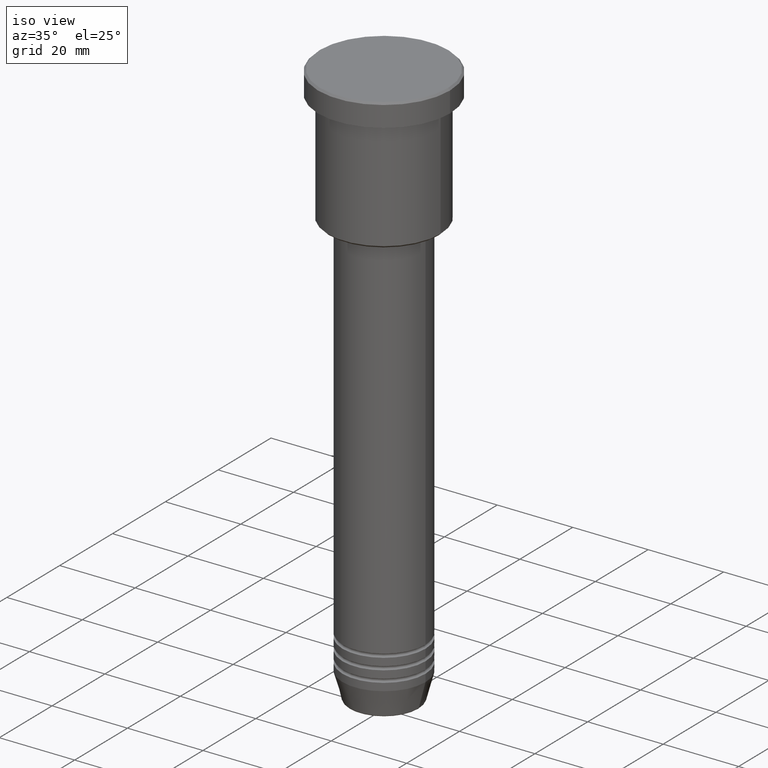
[diagram: clean part render]
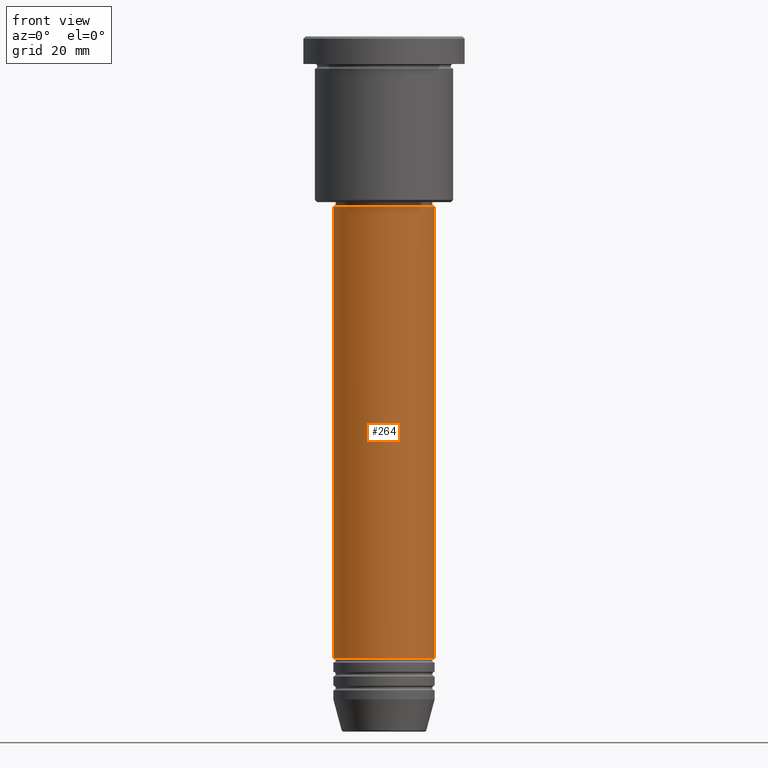
[diagram: tour spotlight — one face highlighted and labeled with its STEP entity id]
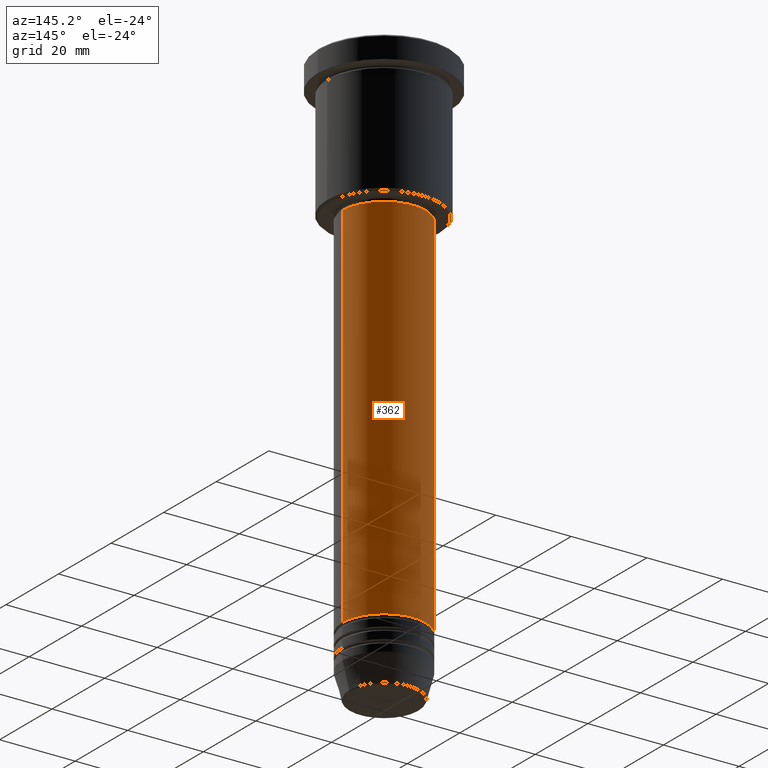
[diagram: tour spotlight — one face highlighted and labeled with its STEP entity id]
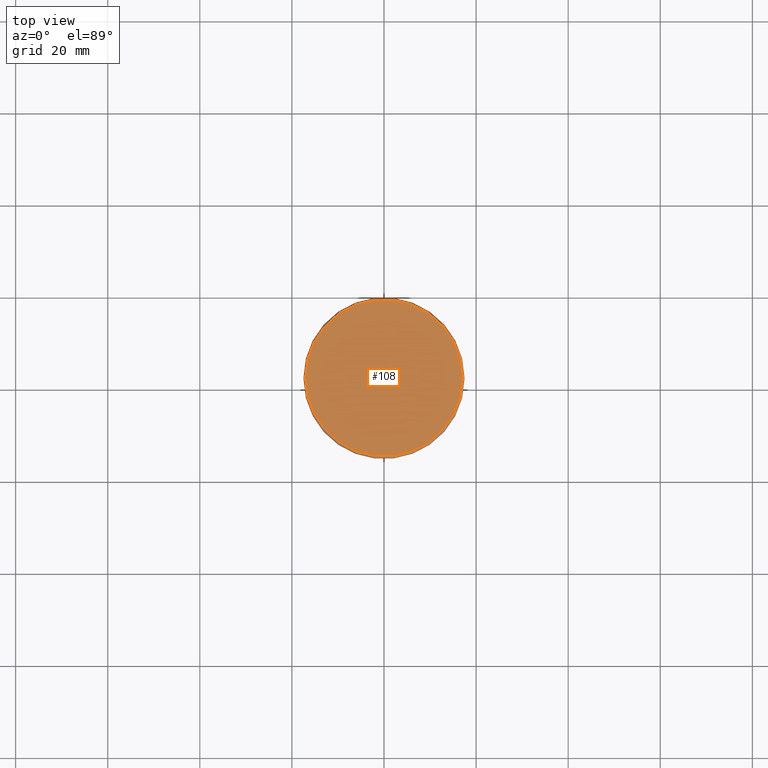
[diagram: tour spotlight — one face highlighted and labeled with its STEP entity id]
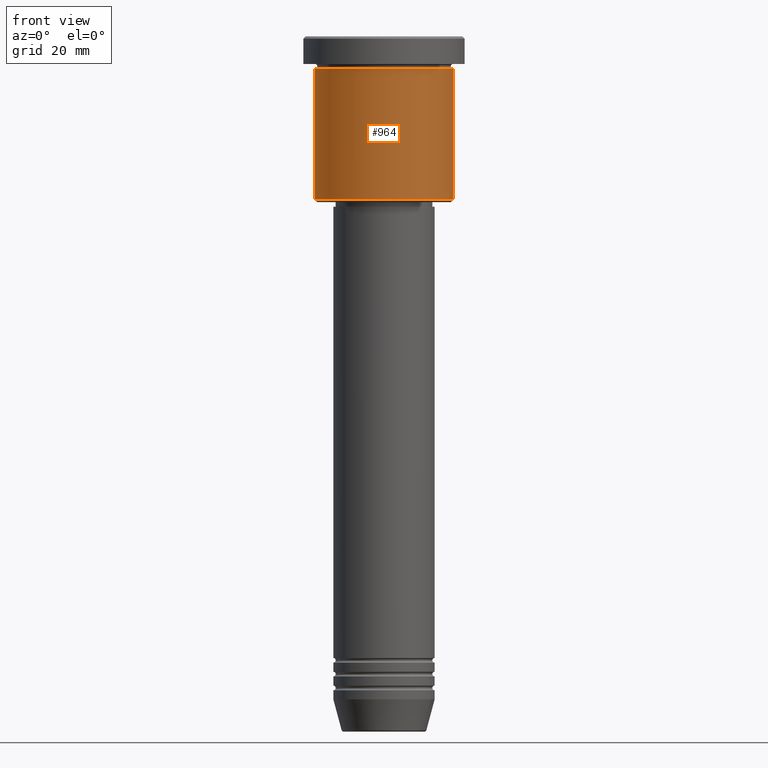
[diagram: tour spotlight — one face highlighted and labeled with its STEP entity id]
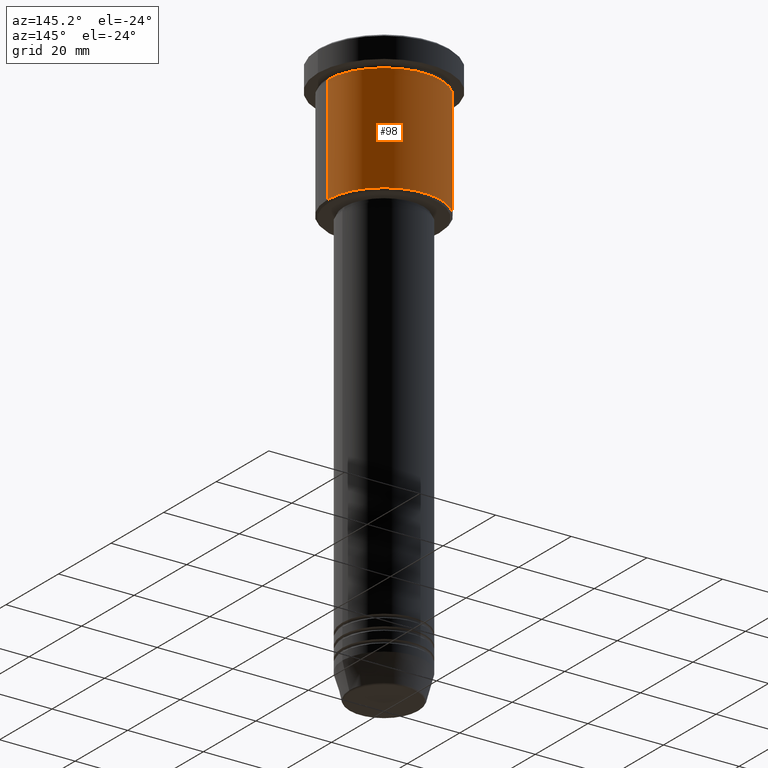
[diagram: tour spotlight — one face highlighted and labeled with its STEP entity id]
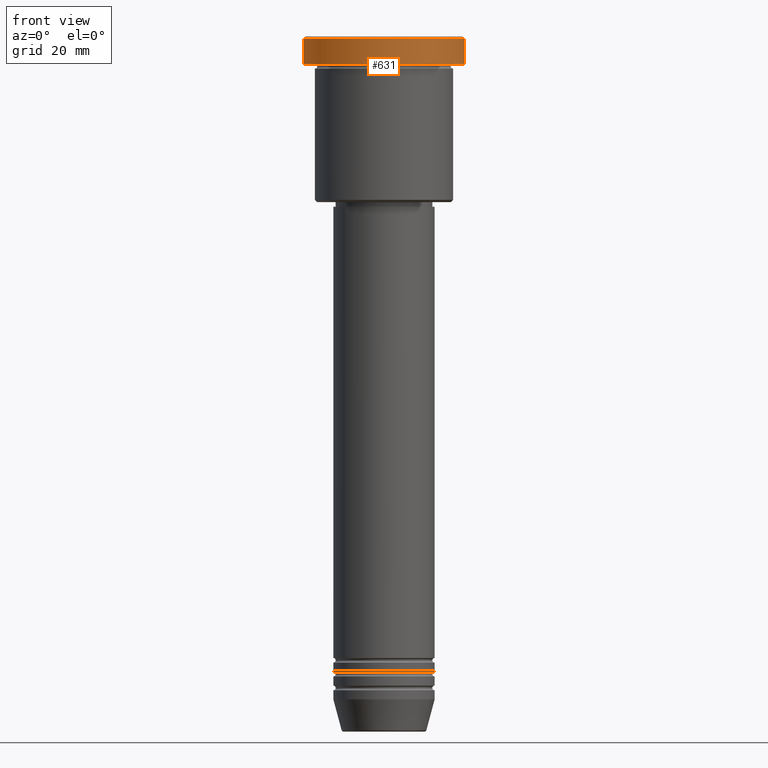
[diagram: tour spotlight — one face highlighted and labeled with its STEP entity id]
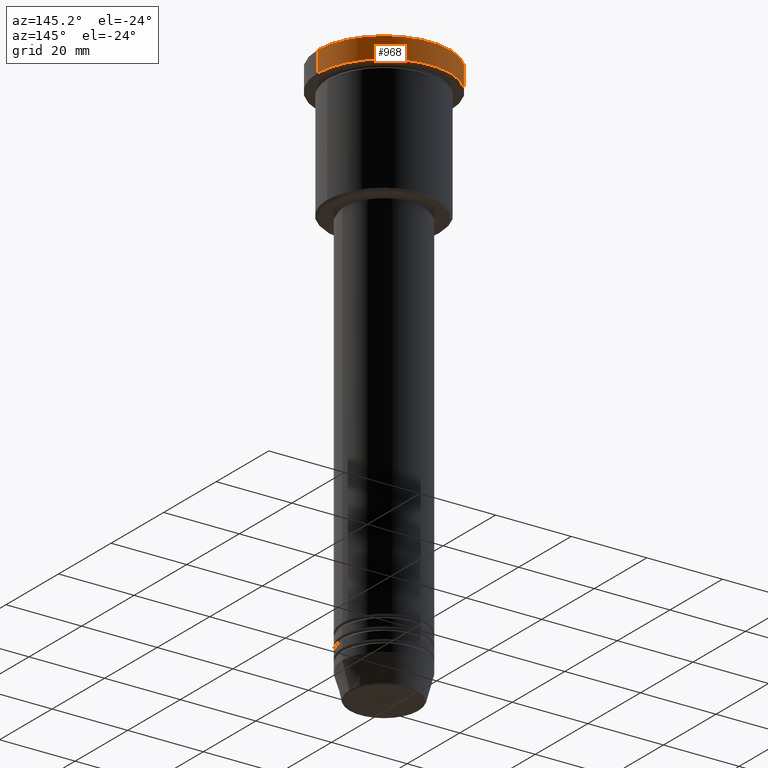
[diagram: tour spotlight — one face highlighted and labeled with its STEP entity id]
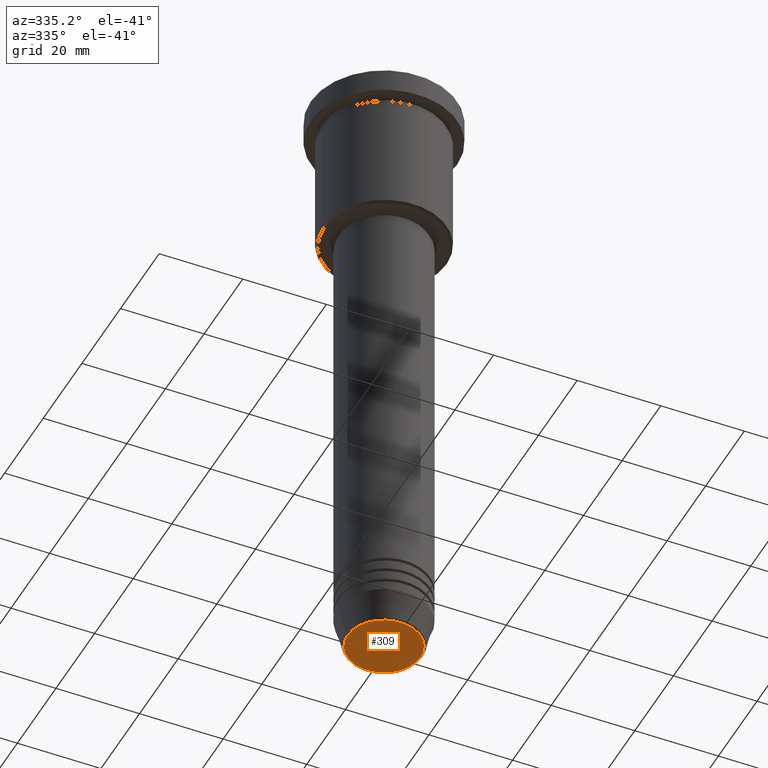
[diagram: tour spotlight — one face highlighted and labeled with its STEP entity id]
A machine part: a face-by-face anatomy tour. The part has 43 B-rep faces; the first image is the clean iso view, then the 8 largest visible faces are spotlighted one at a time (largest first), each with its STEP entity span.

Face 1 — front view, entity #264. In plain terms, the highlighted cylindrical surface (partial cylindrical patch) has radius 11 mm, axis along (-0, -0, 1).
Definition (entity closure, byte-faithful):
#38 = DIRECTION ( 'NONE',  ( -0.000000000000000000, -0.000000000000000000, 1.000000000000000000 ) ) ;
#66 = ORIENTED_EDGE ( 'NONE', *, *, #966, .F. ) ;
#78 = DIRECTION ( 'NONE',  ( -0.000000000000000000, -0.000000000000000000, 1.000000000000000000 ) ) ;
#93 = CIRCLE ( 'NONE', #998, 11.00000000000000000 ) ;
#103 = LINE ( 'NONE', #828, #578 ) ;
#120 = DIRECTION ( 'NONE',  ( -0.000000000000000000, -0.000000000000000000, 1.000000000000000000 ) ) ;
#172 = LINE ( 'NONE', #281, #674 ) ;
#193 = CARTESIAN_POINT ( 'NONE',  ( -11.00000000000000000, 1.347111479062088405E-15, -134.9999999999999716 ) ) ;
#249 = EDGE_LOOP ( 'NONE', ( #66, #871, #413, #1098 ) ) ;
#264 = ADVANCED_FACE ( 'NONE', ( #543 ), #1176, .T. ) ;
#281 = CARTESIAN_POINT ( 'NONE',  ( 11.00000000000000000, 0.000000000000000000, 0.000000000000000000 ) ) ;
#295 = CARTESIAN_POINT ( 'NONE',  ( 0.000000000000000000, 0.000000000000000000, -37.00000000000001421 ) ) ;
#330 = AXIS2_PLACEMENT_3D ( 'NONE', #295, #120, #354 ) ;
#353 = DIRECTION ( 'NONE',  ( 1.000000000000000000, 0.000000000000000000, 0.000000000000000000 ) ) ;
#354 = DIRECTION ( 'NONE',  ( 1.000000000000000000, 0.000000000000000000, 0.000000000000000000 ) ) ;
#380 = EDGE_CURVE ( 'NONE', #651, #1113, #1014, .T. ) ;
#413 = ORIENTED_EDGE ( 'NONE', *, *, #999, .T. ) ;
#423 = VERTEX_POINT ( 'NONE', #193 ) ;
#430 = AXIS2_PLACEMENT_3D ( 'NONE', #906, #78, #353 ) ;
#543 = FACE_OUTER_BOUND ( 'NONE', #249, .T. ) ;
#578 = VECTOR ( 'NONE', #834, 1000.000000000000000 ) ;
#637 = DIRECTION ( 'NONE',  ( -0.000000000000000000, -0.000000000000000000, 1.000000000000000000 ) ) ;
#651 = VERTEX_POINT ( 'NONE', #1042 ) ;
#674 = VECTOR ( 'NONE', #637, 1000.000000000000000 ) ;
#688 = CARTESIAN_POINT ( 'NONE',  ( 0.000000000000000000, 0.000000000000000000, -134.9999999999999716 ) ) ;
#738 = VERTEX_POINT ( 'NONE', #866 ) ;
#828 = CARTESIAN_POINT ( 'NONE',  ( -11.00000000000000000, 1.347111479062088405E-15, 0.000000000000000000 ) ) ;
#834 = DIRECTION ( 'NONE',  ( -0.000000000000000000, -0.000000000000000000, 1.000000000000000000 ) ) ;
#866 = CARTESIAN_POINT ( 'NONE',  ( 11.00000000000000000, 0.000000000000000000, -134.9999999999999716 ) ) ;
#871 = ORIENTED_EDGE ( 'NONE', *, *, #1173, .T. ) ;
#906 = CARTESIAN_POINT ( 'NONE',  ( 0.000000000000000000, 0.000000000000000000, 0.000000000000000000 ) ) ;
#942 = CARTESIAN_POINT ( 'NONE',  ( 11.00000000000000000, 0.000000000000000000, -37.00000000000001421 ) ) ;
#966 = EDGE_CURVE ( 'NONE', #423, #651, #103, .T. ) ;
#998 = AXIS2_PLACEMENT_3D ( 'NONE', #688, #38, #1074 ) ;
#999 = EDGE_CURVE ( 'NONE', #738, #1113, #172, .T. ) ;
#1014 = CIRCLE ( 'NONE', #330, 11.00000000000000000 ) ;
#1042 = CARTESIAN_POINT ( 'NONE',  ( -11.00000000000000000, 1.347111479062088405E-15, -37.00000000000001421 ) ) ;
#1074 = DIRECTION ( 'NONE',  ( 1.000000000000000000, 0.000000000000000000, 0.000000000000000000 ) ) ;
#1098 = ORIENTED_EDGE ( 'NONE', *, *, #380, .F. ) ;
#1113 = VERTEX_POINT ( 'NONE', #942 ) ;
#1173 = EDGE_CURVE ( 'NONE', #423, #738, #93, .T. ) ;
#1176 = CYLINDRICAL_SURFACE ( 'NONE', #430, 11.00000000000000000 ) ;

Face 2 — auxiliary view, entity #362. In plain terms, the highlighted cylindrical surface (partial cylindrical patch) has radius 11 mm, axis along (-0, -0, 1).
Definition (entity closure, byte-faithful):
#44 = CIRCLE ( 'NONE', #126, 11.00000000000000000 ) ;
#81 = ORIENTED_EDGE ( 'NONE', *, *, #966, .T. ) ;
#95 = DIRECTION ( 'NONE',  ( 1.000000000000000000, 0.000000000000000000, 0.000000000000000000 ) ) ;
#103 = LINE ( 'NONE', #828, #578 ) ;
#110 = DIRECTION ( 'NONE',  ( 1.000000000000000000, 0.000000000000000000, 0.000000000000000000 ) ) ;
#126 = AXIS2_PLACEMENT_3D ( 'NONE', #776, #577, #954 ) ;
#172 = LINE ( 'NONE', #281, #674 ) ;
#193 = CARTESIAN_POINT ( 'NONE',  ( -11.00000000000000000, 1.347111479062088405E-15, -134.9999999999999716 ) ) ;
#281 = CARTESIAN_POINT ( 'NONE',  ( 11.00000000000000000, 0.000000000000000000, 0.000000000000000000 ) ) ;
#292 = DIRECTION ( 'NONE',  ( -0.000000000000000000, -0.000000000000000000, 1.000000000000000000 ) ) ;
#362 = ADVANCED_FACE ( 'NONE', ( #600 ), #761, .T. ) ;
#412 = EDGE_CURVE ( 'NONE', #1113, #651, #938, .T. ) ;
#423 = VERTEX_POINT ( 'NONE', #193 ) ;
#441 = ORIENTED_EDGE ( 'NONE', *, *, #1062, .T. ) ;
#457 = CARTESIAN_POINT ( 'NONE',  ( 0.000000000000000000, 0.000000000000000000, -37.00000000000001421 ) ) ;
#577 = DIRECTION ( 'NONE',  ( -0.000000000000000000, -0.000000000000000000, 1.000000000000000000 ) ) ;
#578 = VECTOR ( 'NONE', #834, 1000.000000000000000 ) ;
#600 = FACE_OUTER_BOUND ( 'NONE', #669, .T. ) ;
#637 = DIRECTION ( 'NONE',  ( -0.000000000000000000, -0.000000000000000000, 1.000000000000000000 ) ) ;
#643 = DIRECTION ( 'NONE',  ( -0.000000000000000000, -0.000000000000000000, 1.000000000000000000 ) ) ;
#651 = VERTEX_POINT ( 'NONE', #1042 ) ;
#669 = EDGE_LOOP ( 'NONE', ( #441, #81, #788, #1059 ) ) ;
#672 = AXIS2_PLACEMENT_3D ( 'NONE', #1121, #292, #110 ) ;
#674 = VECTOR ( 'NONE', #637, 1000.000000000000000 ) ;
#738 = VERTEX_POINT ( 'NONE', #866 ) ;
#761 = CYLINDRICAL_SURFACE ( 'NONE', #672, 11.00000000000000000 ) ;
#770 = AXIS2_PLACEMENT_3D ( 'NONE', #457, #643, #95 ) ;
#776 = CARTESIAN_POINT ( 'NONE',  ( 0.000000000000000000, 0.000000000000000000, -134.9999999999999716 ) ) ;
#788 = ORIENTED_EDGE ( 'NONE', *, *, #412, .F. ) ;
#828 = CARTESIAN_POINT ( 'NONE',  ( -11.00000000000000000, 1.347111479062088405E-15, 0.000000000000000000 ) ) ;
#834 = DIRECTION ( 'NONE',  ( -0.000000000000000000, -0.000000000000000000, 1.000000000000000000 ) ) ;
#866 = CARTESIAN_POINT ( 'NONE',  ( 11.00000000000000000, 0.000000000000000000, -134.9999999999999716 ) ) ;
#938 = CIRCLE ( 'NONE', #770, 11.00000000000000000 ) ;
#942 = CARTESIAN_POINT ( 'NONE',  ( 11.00000000000000000, 0.000000000000000000, -37.00000000000001421 ) ) ;
#954 = DIRECTION ( 'NONE',  ( 1.000000000000000000, 0.000000000000000000, 0.000000000000000000 ) ) ;
#966 = EDGE_CURVE ( 'NONE', #423, #651, #103, .T. ) ;
#999 = EDGE_CURVE ( 'NONE', #738, #1113, #172, .T. ) ;
#1042 = CARTESIAN_POINT ( 'NONE',  ( -11.00000000000000000, 1.347111479062088405E-15, -37.00000000000001421 ) ) ;
#1059 = ORIENTED_EDGE ( 'NONE', *, *, #999, .F. ) ;
#1062 = EDGE_CURVE ( 'NONE', #738, #423, #44, .T. ) ;
#1113 = VERTEX_POINT ( 'NONE', #942 ) ;
#1121 = CARTESIAN_POINT ( 'NONE',  ( 0.000000000000000000, 0.000000000000000000, 0.000000000000000000 ) ) ;

Face 3 — top view, entity #108. In plain terms, the highlighted planar face has unit normal (0, -0, 1).
Definition (entity closure, byte-faithful):
#1 = AXIS2_PLACEMENT_3D ( 'NONE', #884, #154, #1175 ) ;
#11 = CARTESIAN_POINT ( 'NONE',  ( 0.000000000000000000, 0.000000000000000000, 0.000000000000000000 ) ) ;
#108 = ADVANCED_FACE ( 'NONE', ( #852 ), #946, .T. ) ;
#154 = DIRECTION ( 'NONE',  ( -0.000000000000000000, -0.000000000000000000, 1.000000000000000000 ) ) ;
#176 = VERTEX_POINT ( 'NONE', #984 ) ;
#230 = ORIENTED_EDGE ( 'NONE', *, *, #922, .T. ) ;
#289 = DIRECTION ( 'NONE',  ( 1.000000000000000000, 0.000000000000000000, 0.000000000000000000 ) ) ;
#298 = DIRECTION ( 'NONE',  ( -0.000000000000000000, -0.000000000000000000, 1.000000000000000000 ) ) ;
#371 = DIRECTION ( 'NONE',  ( 1.000000000000000000, 0.000000000000000000, 0.000000000000000000 ) ) ;
#531 = VERTEX_POINT ( 'NONE', #930 ) ;
#692 = CIRCLE ( 'NONE', #1146, 17.00000000000004263 ) ;
#852 = FACE_OUTER_BOUND ( 'NONE', #885, .T. ) ;
#853 = CARTESIAN_POINT ( 'NONE',  ( 0.000000000000000000, 0.000000000000000000, 0.000000000000000000 ) ) ;
#884 = CARTESIAN_POINT ( 'NONE',  ( 0.000000000000000000, 0.000000000000000000, 0.000000000000000000 ) ) ;
#885 = EDGE_LOOP ( 'NONE', ( #230, #974 ) ) ;
#922 = EDGE_CURVE ( 'NONE', #531, #176, #1144, .T. ) ;
#930 = CARTESIAN_POINT ( 'NONE',  ( -17.00000000000004263, 0.000000000000000000, 0.000000000000000000 ) ) ;
#946 = PLANE ( 'NONE',  #1047 ) ;
#974 = ORIENTED_EDGE ( 'NONE', *, *, #1072, .T. ) ;
#984 = CARTESIAN_POINT ( 'NONE',  ( 17.00000000000004263, 2.112515728529187222E-15, 0.000000000000000000 ) ) ;
#1047 = AXIS2_PLACEMENT_3D ( 'NONE', #11, #1111, #371 ) ;
#1072 = EDGE_CURVE ( 'NONE', #176, #531, #692, .T. ) ;
#1111 = DIRECTION ( 'NONE',  ( 0.000000000000000000, -0.000000000000000000, 1.000000000000000000 ) ) ;
#1144 = CIRCLE ( 'NONE', #1, 17.00000000000004263 ) ;
#1146 = AXIS2_PLACEMENT_3D ( 'NONE', #853, #298, #289 ) ;
#1175 = DIRECTION ( 'NONE',  ( 1.000000000000000000, 0.000000000000000000, 0.000000000000000000 ) ) ;

Face 4 — front view, entity #964. In plain terms, the highlighted cylindrical surface (partial cylindrical patch) has radius 15 mm, axis along (-0, -0, 1).
Definition (entity closure, byte-faithful):
#4 = ORIENTED_EDGE ( 'NONE', *, *, #537, .T. ) ;
#8 = ORIENTED_EDGE ( 'NONE', *, *, #680, .F. ) ;
#24 = AXIS2_PLACEMENT_3D ( 'NONE', #977, #722, #1080 ) ;
#43 = VECTOR ( 'NONE', #756, 1000.000000000000000 ) ;
#86 = ORIENTED_EDGE ( 'NONE', *, *, #426, .T. ) ;
#92 = CIRCLE ( 'NONE', #24, 15.00000000000000000 ) ;
#100 = DIRECTION ( 'NONE',  ( 1.000000000000000000, 0.000000000000000000, 0.000000000000000000 ) ) ;
#265 = EDGE_LOOP ( 'NONE', ( #8, #4, #86, #1174 ) ) ;
#285 = FACE_OUTER_BOUND ( 'NONE', #265, .T. ) ;
#293 = VERTEX_POINT ( 'NONE', #300 ) ;
#300 = CARTESIAN_POINT ( 'NONE',  ( 15.00000000000000000, 0.000000000000000000, -35.49999999999997868 ) ) ;
#369 = CYLINDRICAL_SURFACE ( 'NONE', #863, 15.00000000000000000 ) ;
#388 = LINE ( 'NONE', #830, #43 ) ;
#404 = DIRECTION ( 'NONE',  ( -0.000000000000000000, -0.000000000000000000, 1.000000000000000000 ) ) ;
#410 = CARTESIAN_POINT ( 'NONE',  ( -15.00000000000000000, 1.836970198721029589E-15, 0.000000000000000000 ) ) ;
#426 = EDGE_CURVE ( 'NONE', #293, #439, #388, .T. ) ;
#439 = VERTEX_POINT ( 'NONE', #1026 ) ;
#470 = DIRECTION ( 'NONE',  ( -1.000000000000000000, 0.000000000000000000, 0.000000000000000000 ) ) ;
#537 = EDGE_CURVE ( 'NONE', #913, #293, #730, .T. ) ;
#542 = CARTESIAN_POINT ( 'NONE',  ( -15.00000000000000000, 1.836970198721029589E-15, -35.49999999999997868 ) ) ;
#574 = CARTESIAN_POINT ( 'NONE',  ( 0.000000000000000000, 0.000000000000000000, -35.49999999999997868 ) ) ;
#621 = VERTEX_POINT ( 'NONE', #1039 ) ;
#663 = DIRECTION ( 'NONE',  ( -0.000000000000000000, -0.000000000000000000, 1.000000000000000000 ) ) ;
#680 = EDGE_CURVE ( 'NONE', #913, #621, #777, .T. ) ;
#722 = DIRECTION ( 'NONE',  ( -0.000000000000000000, -0.000000000000000000, 1.000000000000000000 ) ) ;
#730 = CIRCLE ( 'NONE', #1157, 15.00000000000000000 ) ;
#756 = DIRECTION ( 'NONE',  ( -0.000000000000000000, -0.000000000000000000, 1.000000000000000000 ) ) ;
#777 = LINE ( 'NONE', #410, #1035 ) ;
#830 = CARTESIAN_POINT ( 'NONE',  ( 15.00000000000000000, 0.000000000000000000, 0.000000000000000000 ) ) ;
#863 = AXIS2_PLACEMENT_3D ( 'NONE', #1025, #1013, #100 ) ;
#869 = EDGE_CURVE ( 'NONE', #621, #439, #92, .T. ) ;
#913 = VERTEX_POINT ( 'NONE', #542 ) ;
#964 = ADVANCED_FACE ( 'NONE', ( #285 ), #369, .T. ) ;
#977 = CARTESIAN_POINT ( 'NONE',  ( 0.000000000000000000, 0.000000000000000000, -6.999999999999995559 ) ) ;
#1013 = DIRECTION ( 'NONE',  ( -0.000000000000000000, -0.000000000000000000, 1.000000000000000000 ) ) ;
#1025 = CARTESIAN_POINT ( 'NONE',  ( 0.000000000000000000, 0.000000000000000000, 0.000000000000000000 ) ) ;
#1026 = CARTESIAN_POINT ( 'NONE',  ( 15.00000000000000000, 0.000000000000000000, -6.999999999999995559 ) ) ;
#1035 = VECTOR ( 'NONE', #404, 1000.000000000000000 ) ;
#1039 = CARTESIAN_POINT ( 'NONE',  ( -15.00000000000000000, 1.836970198721029589E-15, -6.999999999999995559 ) ) ;
#1080 = DIRECTION ( 'NONE',  ( 1.000000000000000000, 0.000000000000000000, 0.000000000000000000 ) ) ;
#1157 = AXIS2_PLACEMENT_3D ( 'NONE', #574, #663, #470 ) ;
#1174 = ORIENTED_EDGE ( 'NONE', *, *, #869, .F. ) ;

Face 5 — auxiliary view, entity #98. In plain terms, the highlighted cylindrical surface (partial cylindrical patch) has radius 15 mm, axis along (-0, -0, 1).
Definition (entity closure, byte-faithful):
#43 = VECTOR ( 'NONE', #756, 1000.000000000000000 ) ;
#98 = ADVANCED_FACE ( 'NONE', ( #475 ), #294, .T. ) ;
#157 = AXIS2_PLACEMENT_3D ( 'NONE', #832, #573, #488 ) ;
#213 = DIRECTION ( 'NONE',  ( 1.000000000000000000, 0.000000000000000000, 0.000000000000000000 ) ) ;
#221 = DIRECTION ( 'NONE',  ( -1.000000000000000000, 0.000000000000000000, 0.000000000000000000 ) ) ;
#240 = EDGE_LOOP ( 'NONE', ( #933, #678, #325, #321 ) ) ;
#293 = VERTEX_POINT ( 'NONE', #300 ) ;
#294 = CYLINDRICAL_SURFACE ( 'NONE', #157, 15.00000000000000000 ) ;
#300 = CARTESIAN_POINT ( 'NONE',  ( 15.00000000000000000, 0.000000000000000000, -35.49999999999997868 ) ) ;
#321 = ORIENTED_EDGE ( 'NONE', *, *, #426, .F. ) ;
#325 = ORIENTED_EDGE ( 'NONE', *, *, #696, .F. ) ;
#388 = LINE ( 'NONE', #830, #43 ) ;
#404 = DIRECTION ( 'NONE',  ( -0.000000000000000000, -0.000000000000000000, 1.000000000000000000 ) ) ;
#408 = DIRECTION ( 'NONE',  ( -0.000000000000000000, -0.000000000000000000, 1.000000000000000000 ) ) ;
#410 = CARTESIAN_POINT ( 'NONE',  ( -15.00000000000000000, 1.836970198721029589E-15, 0.000000000000000000 ) ) ;
#426 = EDGE_CURVE ( 'NONE', #293, #439, #388, .T. ) ;
#439 = VERTEX_POINT ( 'NONE', #1026 ) ;
#475 = FACE_OUTER_BOUND ( 'NONE', #240, .T. ) ;
#488 = DIRECTION ( 'NONE',  ( 1.000000000000000000, 0.000000000000000000, 0.000000000000000000 ) ) ;
#539 = CIRCLE ( 'NONE', #612, 15.00000000000000000 ) ;
#542 = CARTESIAN_POINT ( 'NONE',  ( -15.00000000000000000, 1.836970198721029589E-15, -35.49999999999997868 ) ) ;
#573 = DIRECTION ( 'NONE',  ( -0.000000000000000000, -0.000000000000000000, 1.000000000000000000 ) ) ;
#612 = AXIS2_PLACEMENT_3D ( 'NONE', #691, #408, #221 ) ;
#621 = VERTEX_POINT ( 'NONE', #1039 ) ;
#678 = ORIENTED_EDGE ( 'NONE', *, *, #680, .T. ) ;
#679 = DIRECTION ( 'NONE',  ( -0.000000000000000000, -0.000000000000000000, 1.000000000000000000 ) ) ;
#680 = EDGE_CURVE ( 'NONE', #913, #621, #777, .T. ) ;
#691 = CARTESIAN_POINT ( 'NONE',  ( 0.000000000000000000, 0.000000000000000000, -35.49999999999997868 ) ) ;
#696 = EDGE_CURVE ( 'NONE', #439, #621, #1181, .T. ) ;
#756 = DIRECTION ( 'NONE',  ( -0.000000000000000000, -0.000000000000000000, 1.000000000000000000 ) ) ;
#775 = EDGE_CURVE ( 'NONE', #293, #913, #539, .T. ) ;
#777 = LINE ( 'NONE', #410, #1035 ) ;
#830 = CARTESIAN_POINT ( 'NONE',  ( 15.00000000000000000, 0.000000000000000000, 0.000000000000000000 ) ) ;
#832 = CARTESIAN_POINT ( 'NONE',  ( 0.000000000000000000, 0.000000000000000000, 0.000000000000000000 ) ) ;
#913 = VERTEX_POINT ( 'NONE', #542 ) ;
#933 = ORIENTED_EDGE ( 'NONE', *, *, #775, .T. ) ;
#1026 = CARTESIAN_POINT ( 'NONE',  ( 15.00000000000000000, 0.000000000000000000, -6.999999999999995559 ) ) ;
#1035 = VECTOR ( 'NONE', #404, 1000.000000000000000 ) ;
#1038 = CARTESIAN_POINT ( 'NONE',  ( 0.000000000000000000, 0.000000000000000000, -6.999999999999995559 ) ) ;
#1039 = CARTESIAN_POINT ( 'NONE',  ( -15.00000000000000000, 1.836970198721029589E-15, -6.999999999999995559 ) ) ;
#1065 = AXIS2_PLACEMENT_3D ( 'NONE', #1038, #679, #213 ) ;
#1181 = CIRCLE ( 'NONE', #1065, 15.00000000000000000 ) ;

Face 6 — front view, entity #631. In plain terms, the highlighted cylindrical surface (partial cylindrical patch) has radius 17.5 mm, axis along (-0, -0, 1).
Definition (entity closure, byte-faithful):
#36 = EDGE_CURVE ( 'NONE', #907, #61, #1000, .T. ) ;
#51 = AXIS2_PLACEMENT_3D ( 'NONE', #164, #65, #735 ) ;
#57 = VERTEX_POINT ( 'NONE', #399 ) ;
#61 = VERTEX_POINT ( 'NONE', #763 ) ;
#65 = DIRECTION ( 'NONE',  ( -0.000000000000000000, -0.000000000000000000, 1.000000000000000000 ) ) ;
#164 = CARTESIAN_POINT ( 'NONE',  ( 0.000000000000000000, 0.000000000000000000, -5.999999999999995559 ) ) ;
#166 = DIRECTION ( 'NONE',  ( -0.000000000000000000, -0.000000000000000000, 1.000000000000000000 ) ) ;
#169 = CARTESIAN_POINT ( 'NONE',  ( 0.000000000000000000, 0.000000000000000000, 0.000000000000000000 ) ) ;
#170 = VERTEX_POINT ( 'NONE', #978 ) ;
#204 = CARTESIAN_POINT ( 'NONE',  ( 17.50000000000000000, 0.000000000000000000, 0.000000000000000000 ) ) ;
#205 = VECTOR ( 'NONE', #166, 1000.000000000000000 ) ;
#231 = EDGE_CURVE ( 'NONE', #907, #57, #592, .T. ) ;
#237 = DIRECTION ( 'NONE',  ( 1.000000000000000000, 0.000000000000000000, 0.000000000000000000 ) ) ;
#333 = CYLINDRICAL_SURFACE ( 'NONE', #1033, 17.50000000000000000 ) ;
#390 = DIRECTION ( 'NONE',  ( -0.000000000000000000, -0.000000000000000000, 1.000000000000000000 ) ) ;
#399 = CARTESIAN_POINT ( 'NONE',  ( 17.50000000000000000, 0.000000000000000000, -5.999999999999995559 ) ) ;
#406 = VECTOR ( 'NONE', #390, 1000.000000000000000 ) ;
#447 = DIRECTION ( 'NONE',  ( -0.000000000000000000, -0.000000000000000000, 1.000000000000000000 ) ) ;
#464 = ORIENTED_EDGE ( 'NONE', *, *, #1131, .T. ) ;
#480 = EDGE_LOOP ( 'NONE', ( #989, #921, #464, #564 ) ) ;
#497 = EDGE_CURVE ( 'NONE', #170, #61, #611, .T. ) ;
#499 = DIRECTION ( 'NONE',  ( 1.000000000000000000, 0.000000000000000000, 0.000000000000000000 ) ) ;
#524 = FACE_OUTER_BOUND ( 'NONE', #480, .T. ) ;
#564 = ORIENTED_EDGE ( 'NONE', *, *, #497, .T. ) ;
#592 = CIRCLE ( 'NONE', #51, 17.50000000000000000 ) ;
#611 = CIRCLE ( 'NONE', #1048, 17.50000000000000000 ) ;
#631 = ADVANCED_FACE ( 'NONE', ( #524 ), #333, .T. ) ;
#702 = CARTESIAN_POINT ( 'NONE',  ( 0.000000000000000000, 0.000000000000000000, -0.4999999999999865663 ) ) ;
#735 = DIRECTION ( 'NONE',  ( 1.000000000000000000, 0.000000000000000000, 0.000000000000000000 ) ) ;
#763 = CARTESIAN_POINT ( 'NONE',  ( -17.50000000000000000, 2.143131898507868248E-15, -0.4999999999999865663 ) ) ;
#817 = CARTESIAN_POINT ( 'NONE',  ( -17.50000000000000000, 2.143131898507868248E-15, 0.000000000000000000 ) ) ;
#867 = LINE ( 'NONE', #204, #406 ) ;
#907 = VERTEX_POINT ( 'NONE', #1076 ) ;
#921 = ORIENTED_EDGE ( 'NONE', *, *, #231, .T. ) ;
#978 = CARTESIAN_POINT ( 'NONE',  ( 17.50000000000000000, 0.000000000000000000, -0.4999999999999865663 ) ) ;
#989 = ORIENTED_EDGE ( 'NONE', *, *, #36, .F. ) ;
#1000 = LINE ( 'NONE', #817, #205 ) ;
#1033 = AXIS2_PLACEMENT_3D ( 'NONE', #169, #447, #499 ) ;
#1048 = AXIS2_PLACEMENT_3D ( 'NONE', #702, #1064, #237 ) ;
#1064 = DIRECTION ( 'NONE',  ( 0.000000000000000000, 0.000000000000000000, -1.000000000000000000 ) ) ;
#1076 = CARTESIAN_POINT ( 'NONE',  ( -17.50000000000000000, 2.143131898507868248E-15, -5.999999999999995559 ) ) ;
#1131 = EDGE_CURVE ( 'NONE', #57, #170, #867, .T. ) ;

Face 7 — auxiliary view, entity #968. In plain terms, the highlighted cylindrical surface (partial cylindrical patch) has radius 17.5 mm, axis along (-0, -0, 1).
Definition (entity closure, byte-faithful):
#36 = EDGE_CURVE ( 'NONE', #907, #61, #1000, .T. ) ;
#57 = VERTEX_POINT ( 'NONE', #399 ) ;
#61 = VERTEX_POINT ( 'NONE', #763 ) ;
#70 = AXIS2_PLACEMENT_3D ( 'NONE', #727, #465, #198 ) ;
#165 = ORIENTED_EDGE ( 'NONE', *, *, #1131, .F. ) ;
#166 = DIRECTION ( 'NONE',  ( -0.000000000000000000, -0.000000000000000000, 1.000000000000000000 ) ) ;
#170 = VERTEX_POINT ( 'NONE', #978 ) ;
#198 = DIRECTION ( 'NONE',  ( 1.000000000000000000, 0.000000000000000000, 0.000000000000000000 ) ) ;
#204 = CARTESIAN_POINT ( 'NONE',  ( 17.50000000000000000, 0.000000000000000000, 0.000000000000000000 ) ) ;
#205 = VECTOR ( 'NONE', #166, 1000.000000000000000 ) ;
#267 = CARTESIAN_POINT ( 'NONE',  ( 0.000000000000000000, 0.000000000000000000, 0.000000000000000000 ) ) ;
#327 = CARTESIAN_POINT ( 'NONE',  ( 0.000000000000000000, 0.000000000000000000, -0.4999999999999865663 ) ) ;
#334 = AXIS2_PLACEMENT_3D ( 'NONE', #267, #479, #1115 ) ;
#359 = AXIS2_PLACEMENT_3D ( 'NONE', #327, #801, #619 ) ;
#390 = DIRECTION ( 'NONE',  ( -0.000000000000000000, -0.000000000000000000, 1.000000000000000000 ) ) ;
#399 = CARTESIAN_POINT ( 'NONE',  ( 17.50000000000000000, 0.000000000000000000, -5.999999999999995559 ) ) ;
#406 = VECTOR ( 'NONE', #390, 1000.000000000000000 ) ;
#465 = DIRECTION ( 'NONE',  ( -0.000000000000000000, -0.000000000000000000, 1.000000000000000000 ) ) ;
#471 = ORIENTED_EDGE ( 'NONE', *, *, #36, .T. ) ;
#479 = DIRECTION ( 'NONE',  ( -0.000000000000000000, -0.000000000000000000, 1.000000000000000000 ) ) ;
#485 = CIRCLE ( 'NONE', #70, 17.50000000000000000 ) ;
#536 = ORIENTED_EDGE ( 'NONE', *, *, #829, .T. ) ;
#571 = FACE_OUTER_BOUND ( 'NONE', #811, .T. ) ;
#619 = DIRECTION ( 'NONE',  ( 1.000000000000000000, 0.000000000000000000, 0.000000000000000000 ) ) ;
#727 = CARTESIAN_POINT ( 'NONE',  ( 0.000000000000000000, 0.000000000000000000, -5.999999999999995559 ) ) ;
#740 = CYLINDRICAL_SURFACE ( 'NONE', #334, 17.50000000000000000 ) ;
#763 = CARTESIAN_POINT ( 'NONE',  ( -17.50000000000000000, 2.143131898507868248E-15, -0.4999999999999865663 ) ) ;
#801 = DIRECTION ( 'NONE',  ( 0.000000000000000000, 0.000000000000000000, -1.000000000000000000 ) ) ;
#811 = EDGE_LOOP ( 'NONE', ( #1149, #471, #536, #165 ) ) ;
#817 = CARTESIAN_POINT ( 'NONE',  ( -17.50000000000000000, 2.143131898507868248E-15, 0.000000000000000000 ) ) ;
#829 = EDGE_CURVE ( 'NONE', #61, #170, #1110, .T. ) ;
#867 = LINE ( 'NONE', #204, #406 ) ;
#907 = VERTEX_POINT ( 'NONE', #1076 ) ;
#953 = EDGE_CURVE ( 'NONE', #57, #907, #485, .T. ) ;
#968 = ADVANCED_FACE ( 'NONE', ( #571 ), #740, .T. ) ;
#978 = CARTESIAN_POINT ( 'NONE',  ( 17.50000000000000000, 0.000000000000000000, -0.4999999999999865663 ) ) ;
#1000 = LINE ( 'NONE', #817, #205 ) ;
#1076 = CARTESIAN_POINT ( 'NONE',  ( -17.50000000000000000, 2.143131898507868248E-15, -5.999999999999995559 ) ) ;
#1110 = CIRCLE ( 'NONE', #359, 17.50000000000000000 ) ;
#1115 = DIRECTION ( 'NONE',  ( 1.000000000000000000, 0.000000000000000000, 0.000000000000000000 ) ) ;
#1131 = EDGE_CURVE ( 'NONE', #57, #170, #867, .T. ) ;
#1149 = ORIENTED_EDGE ( 'NONE', *, *, #953, .T. ) ;

Face 8 — auxiliary view, entity #309. In plain terms, the highlighted planar face has unit normal (0, -0, 1).
Definition (entity closure, byte-faithful):
#138 = CIRCLE ( 'NONE', #1112, 8.740692158992656502 ) ;
#187 = DIRECTION ( 'NONE',  ( 1.000000000000000000, 0.000000000000000000, 0.000000000000000000 ) ) ;
#246 = CARTESIAN_POINT ( 'NONE',  ( 8.740692158992656502, 0.000000000000000000, -151.0000000000000284 ) ) ;
#280 = AXIS2_PLACEMENT_3D ( 'NONE', #746, #661, #468 ) ;
#309 = ADVANCED_FACE ( 'NONE', ( #387 ), #395, .F. ) ;
#387 = FACE_OUTER_BOUND ( 'NONE', #494, .T. ) ;
#395 = PLANE ( 'NONE',  #1106 ) ;
#416 = EDGE_CURVE ( 'NONE', #855, #684, #689, .T. ) ;
#468 = DIRECTION ( 'NONE',  ( 1.000000000000000000, 0.000000000000000000, 0.000000000000000000 ) ) ;
#494 = EDGE_LOOP ( 'NONE', ( #812, #627 ) ) ;
#549 = DIRECTION ( 'NONE',  ( 0.000000000000000000, 0.000000000000000000, -1.000000000000000000 ) ) ;
#585 = CARTESIAN_POINT ( 'NONE',  ( 0.000000000000000000, 0.000000000000000000, -151.0000000000000284 ) ) ;
#627 = ORIENTED_EDGE ( 'NONE', *, *, #1006, .T. ) ;
#649 = DIRECTION ( 'NONE',  ( 0.000000000000000000, -0.000000000000000000, 1.000000000000000000 ) ) ;
#661 = DIRECTION ( 'NONE',  ( 0.000000000000000000, 0.000000000000000000, -1.000000000000000000 ) ) ;
#683 = CARTESIAN_POINT ( 'NONE',  ( -8.740692158992656502, 1.099999016768739653E-15, -151.0000000000000284 ) ) ;
#684 = VERTEX_POINT ( 'NONE', #683 ) ;
#689 = CIRCLE ( 'NONE', #280, 8.740692158992656502 ) ;
#746 = CARTESIAN_POINT ( 'NONE',  ( 0.000000000000000000, 0.000000000000000000, -151.0000000000000284 ) ) ;
#812 = ORIENTED_EDGE ( 'NONE', *, *, #416, .T. ) ;
#855 = VERTEX_POINT ( 'NONE', #246 ) ;
#1002 = CARTESIAN_POINT ( 'NONE',  ( 0.000000000000000000, 0.000000000000000000, -151.0000000000000284 ) ) ;
#1006 = EDGE_CURVE ( 'NONE', #684, #855, #138, .T. ) ;
#1007 = DIRECTION ( 'NONE',  ( 1.000000000000000000, 0.000000000000000000, 0.000000000000000000 ) ) ;
#1106 = AXIS2_PLACEMENT_3D ( 'NONE', #585, #649, #187 ) ;
#1112 = AXIS2_PLACEMENT_3D ( 'NONE', #1002, #549, #1007 ) ;